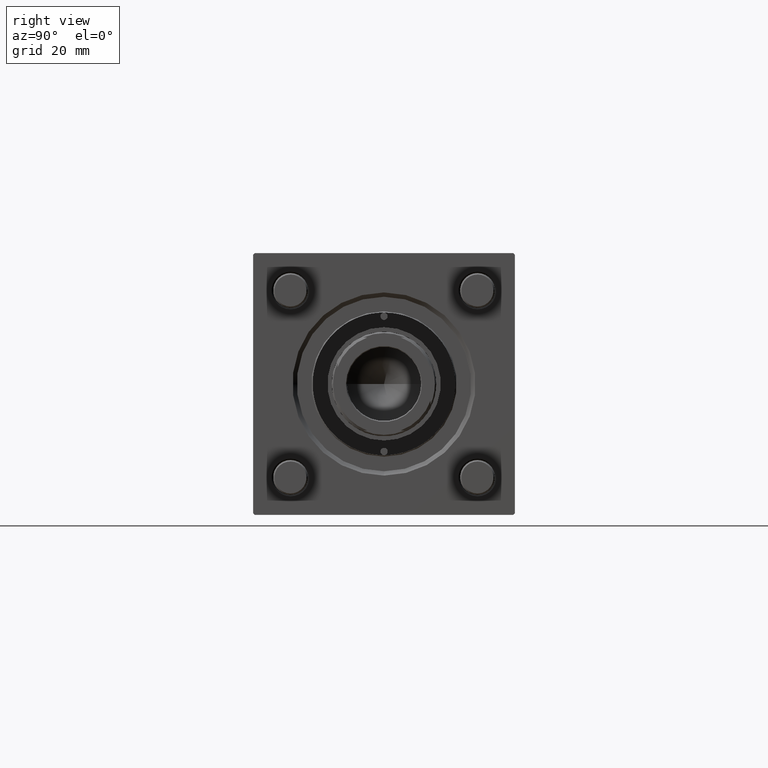
[diagram: clean part render]
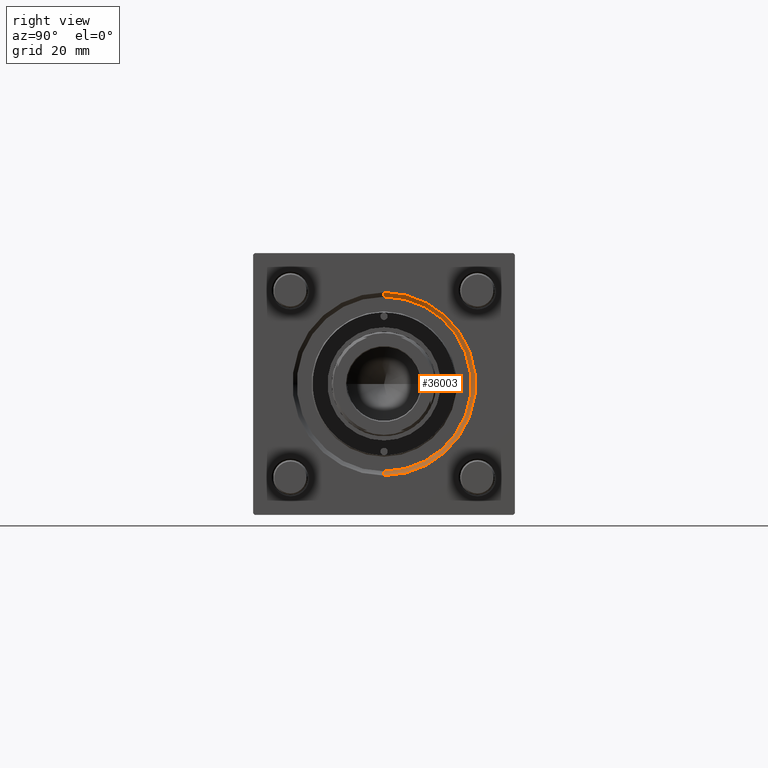
[diagram: same view with one face highlighted and labeled with its STEP entity id]
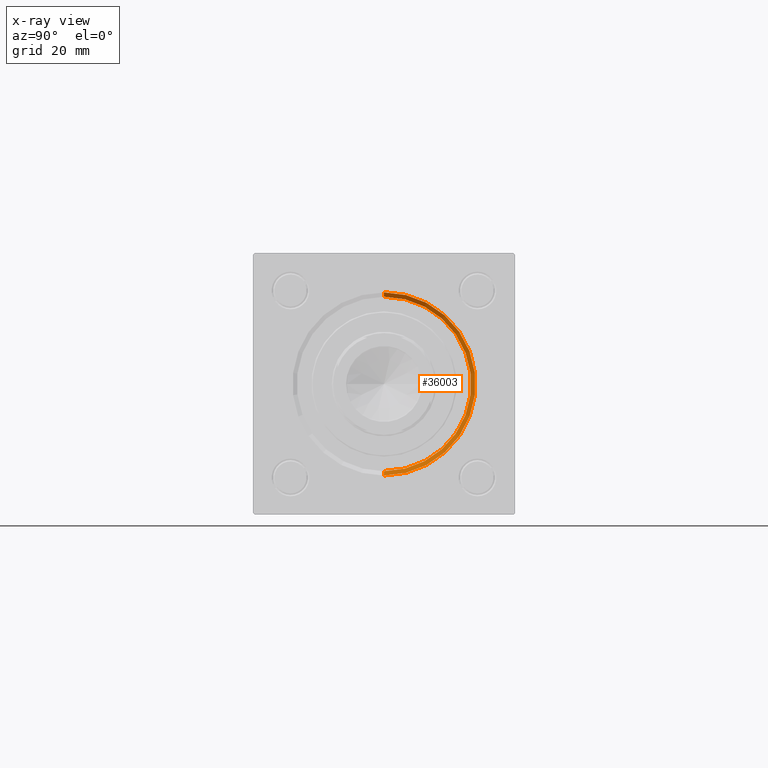
[diagram: x-ray of the same camera — body ghosted, the highlighted face saturated]
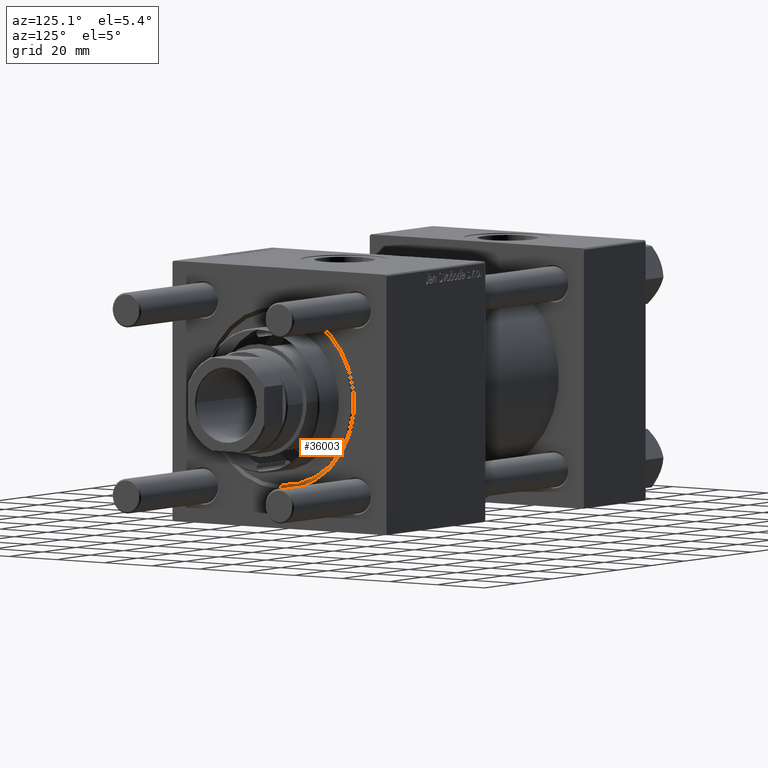
[diagram: same view with one face highlighted and labeled with its STEP entity id]
A machine part, right view. The second image highlights one B-rep face of the part: STEP entity #36003.
The next image is the same camera in x-ray: the body ghosted, the highlighted face saturated — about 0% of this face is hidden behind the body in this view.
A second angle (auxiliary view) of the same face is appended — the face is thin or edge-on in the first view.
In plain terms, the highlighted conical surface has half-angle 45 deg.
Its self-contained STEP definition (entity closure, byte-faithful):
#38 = CARTESIAN_POINT ( 'NONE',  ( 153.5000000000000000, 0.000000000000000000, -30.00000000000000000 ) ) ;
#166 = VERTEX_POINT ( 'NONE', #52209 ) ;
#1832 = CARTESIAN_POINT ( 'NONE',  ( 155.0000000000000000, 0.000000000000000000, 0.000000000000000000 ) ) ;
#2619 = CARTESIAN_POINT ( 'NONE',  ( 155.0000000000000000, 0.000000000000000000, -31.50000000000000000 ) ) ;
#6713 = DIRECTION ( 'NONE',  ( -1.000000000000000000, -0.000000000000000000, -0.000000000000000000 ) ) ;
#6730 = AXIS2_PLACEMENT_3D ( 'NONE', #7946, #56541, #48463 ) ;
#6909 = CARTESIAN_POINT ( 'NONE',  ( 153.5000000000000000, 0.000000000000000000, -30.00000000000000000 ) ) ;
#7946 = CARTESIAN_POINT ( 'NONE',  ( 153.5000000000000000, 0.000000000000000000, 0.000000000000000000 ) ) ;
#10005 = DIRECTION ( 'NONE',  ( 0.000000000000000000, 0.000000000000000000, 1.000000000000000000 ) ) ;
#12263 = CONICAL_SURFACE ( 'NONE', #6730, 30.00000000000000000, 0.7853981633974482790 ) ;
#12933 = AXIS2_PLACEMENT_3D ( 'NONE', #31853, #49380, #10005 ) ;
#14663 = VERTEX_POINT ( 'NONE', #38 ) ;
#15337 = DIRECTION ( 'NONE',  ( 0.000000000000000000, 0.000000000000000000, 1.000000000000000000 ) ) ;
#17897 = VERTEX_POINT ( 'NONE', #38799 ) ;
#18995 = LINE ( 'NONE', #48884, #19783 ) ;
#19783 = VECTOR ( 'NONE', #36541, 1000.000000000000114 ) ;
#19866 = LINE ( 'NONE', #6909, #56046 ) ;
#23203 = EDGE_CURVE ( 'NONE', #14663, #31382, #19866, .T. ) ;
#25013 = DIRECTION ( 'NONE',  ( 0.7071067811865474617, 0.000000000000000000, -0.7071067811865474617 ) ) ;
#25091 = EDGE_CURVE ( 'NONE', #14663, #17897, #34928, .T. ) ;
#27425 = ORIENTED_EDGE ( 'NONE', *, *, #25091, .F. ) ;
#30162 = ORIENTED_EDGE ( 'NONE', *, *, #38181, .F. ) ;
#31382 = VERTEX_POINT ( 'NONE', #2619 ) ;
#31853 = CARTESIAN_POINT ( 'NONE',  ( 153.5000000000000000, 0.000000000000000000, 0.000000000000000000 ) ) ;
#34387 = AXIS2_PLACEMENT_3D ( 'NONE', #1832, #6713, #15337 ) ;
#34928 = CIRCLE ( 'NONE', #12933, 30.00000000000000000 ) ;
#36003 = ADVANCED_FACE ( 'NONE', ( #39584 ), #12263, .F. ) ;
#36541 = DIRECTION ( 'NONE',  ( 0.7071067811865474617, 8.659560562354932858E-17, 0.7071067811865474617 ) ) ;
#38181 = EDGE_CURVE ( 'NONE', #166, #31382, #51817, .T. ) ;
#38799 = CARTESIAN_POINT ( 'NONE',  ( 153.5000000000000000, 3.673940397442059178E-15, 30.00000000000000000 ) ) ;
#39584 = FACE_OUTER_BOUND ( 'NONE', #49565, .T. ) ;
#45200 = ORIENTED_EDGE ( 'NONE', *, *, #23203, .T. ) ;
#45212 = ORIENTED_EDGE ( 'NONE', *, *, #46527, .F. ) ;
#46527 = EDGE_CURVE ( 'NONE', #17897, #166, #18995, .T. ) ;
#48463 = DIRECTION ( 'NONE',  ( 0.000000000000000000, 0.000000000000000000, -1.000000000000000000 ) ) ;
#48884 = CARTESIAN_POINT ( 'NONE',  ( 153.5000000000000000, 3.673940397442059178E-15, 30.00000000000000000 ) ) ;
#49380 = DIRECTION ( 'NONE',  ( 1.000000000000000000, 0.000000000000000000, 0.000000000000000000 ) ) ;
#49565 = EDGE_LOOP ( 'NONE', ( #45212, #27425, #45200, #30162 ) ) ;
#51817 = CIRCLE ( 'NONE', #34387, 31.50000000000000000 ) ;
#52209 = CARTESIAN_POINT ( 'NONE',  ( 155.0000000000000000, 3.857637417314162689E-15, 31.50000000000000000 ) ) ;
#56046 = VECTOR ( 'NONE', #25013, 1000.000000000000114 ) ;
#56541 = DIRECTION ( 'NONE',  ( 1.000000000000000000, 0.000000000000000000, 0.000000000000000000 ) ) ;